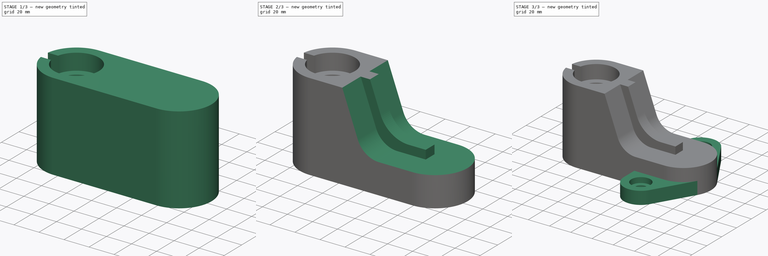
[diagram: build sequence overview — one tinted view per stage of 3, left to right]
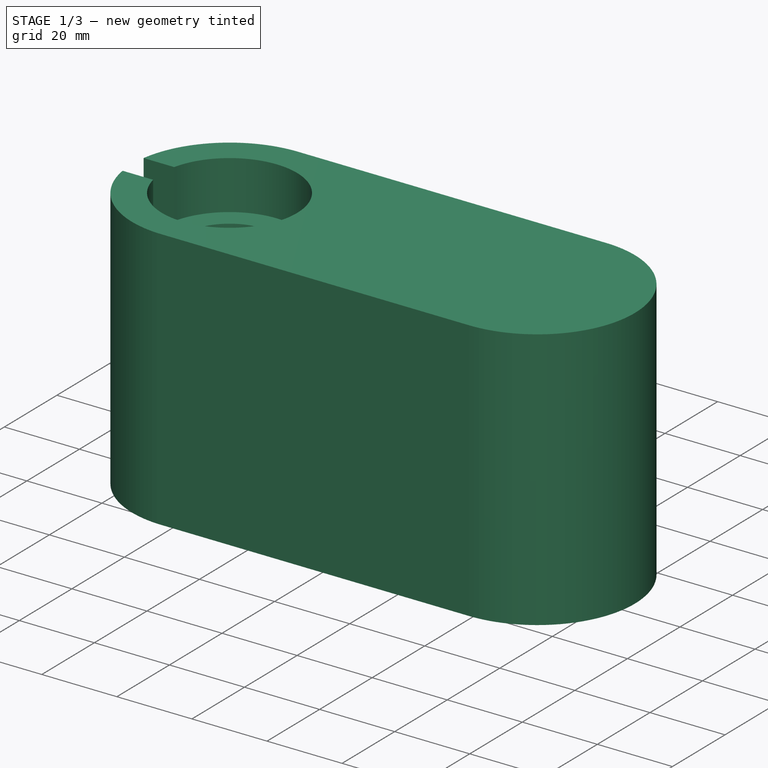
[diagram: stage 1 of 3 — iso view after this stage's code; geometry added in this stage tinted green]
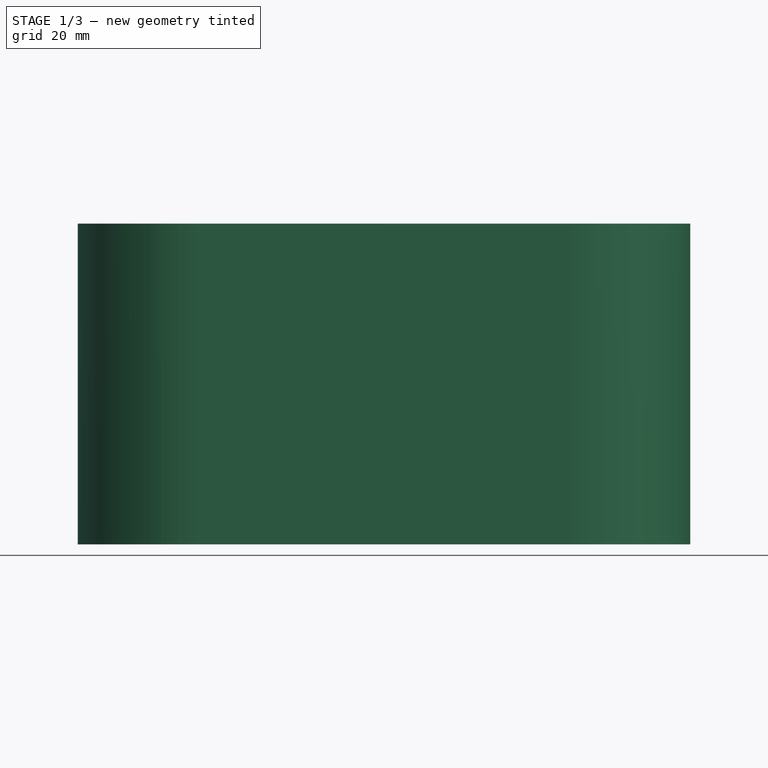
[diagram: stage 1 of 3 — front view after this stage's code; geometry added in this stage tinted green]
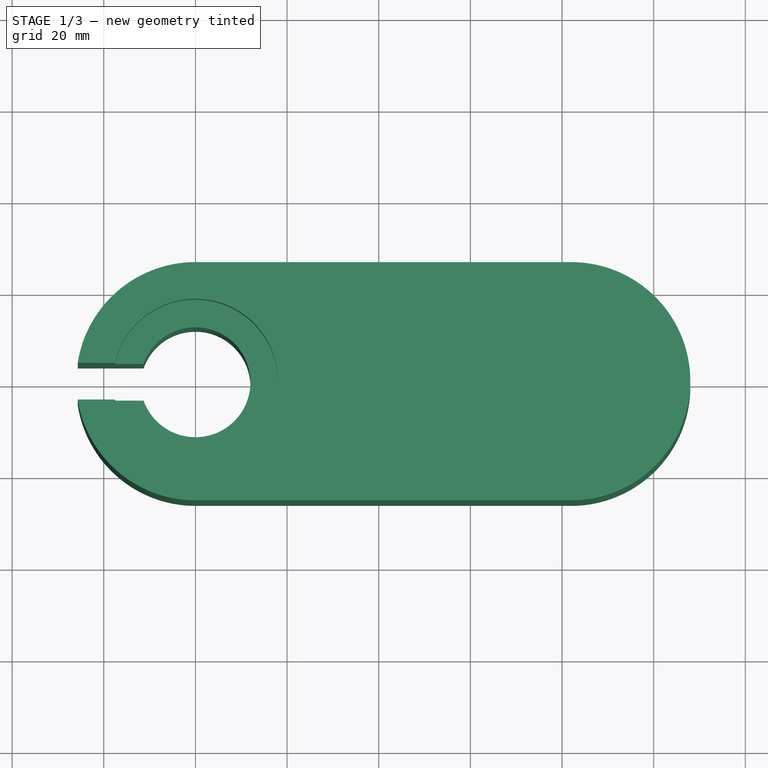
[diagram: stage 1 of 3 — top view after this stage's code; geometry added in this stage tinted green]
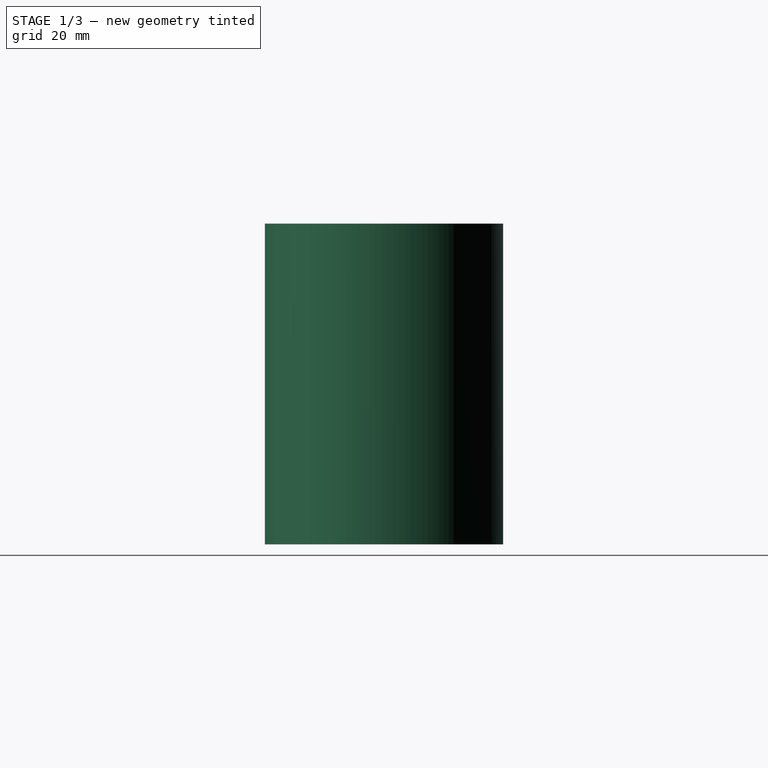
[diagram: stage 1 of 3 — right view after this stage's code; geometry added in this stage tinted green]
FCSTD DOCUMENT  (FreeCAD 1.1R42340 (Git))
Label: 25-VT-08-L_STUB
License: Creative Commons Attribution-NonCommercial-ShareAlike 4.0
LicenseURL: https://creativecommons.org/licenses/by-nc-sa/4.0/
objects: Sketcher::SketchObject×5, PartDesign::Pad×3, PartDesign::Pocket×2, PartDesign::Hole×2, App::Point×1, PartDesign::Mirrored×1, PartDesign::Body×1, App::TextDocument×1
note: 34 computed .brp shape members not serialized (recipe doc carries the construction recipe); baked Part::Feature solids carry a one-line shape summary decoded from their .brp

FEATURE [App::Point] Origin001
  Role = Origin
FEATURE [Sketcher::SketchObject] Sketch
  ArcFitTolerance = 1e-06
  AttachmentSupport = -> [Origin]
  ExternalTypes = [0]
  FullyConstrained = true
  MakeInternals = false
  MapMode = 5
  sketch-geometry (4):
    g0: ArcOfCircle CenterX=82 CenterY=9e-16 CenterZ=0 NormalX=0 NormalY=0 NormalZ=1 AngleXU=0 Radius=26 StartAngle=4.71239 EndAngle=7.85398
    g1: ArcOfCircle CenterX=0 CenterY=0 CenterZ=0 NormalX=0 NormalY=0 NormalZ=1 AngleXU=0 Radius=26 StartAngle=1.5708 EndAngle=4.71239
    g2: LineSegment StartX=82 StartY=-26 StartZ=0 EndX=0 EndY=-26 EndZ=0
    g3: LineSegment StartX=82 StartY=26 StartZ=0 EndX=0 EndY=26 EndZ=0
  constraints (9):
    c: Tangent(g0,g2) = 1.5708
    c: Tangent(g0,g3) = -1.5708
    c: Tangent(g1,g2) = 1.5708
    c: Tangent(g1,g3) = -1.5708
    c: Equal(g0,g1)
    c: Horizontal(g3)
    c: Distance(g0,g1) = 82
    c: Radius(g0) = 26
    c: Coincident(g1,g-1)
FEATURE [PartDesign::Pad] Pad
  Direction = (0,0,1)
  Length = 70
  Length2 = 10
  Profile = -> Sketch
  ReferenceAxis = -> Sketch [N_Axis]
  Refine = true
  Suppressed = false
  Type = 0
FEATURE [Sketcher::SketchObject] Sketch001
  ArcFitTolerance = 1e-06
  AttachmentSupport = -> [Origin]
  ExternalGeometry = -> [Pad]
  ExternalTypes = [0]
  FullyConstrained = true
  MakeInternals = false
  MapMode = 5
  Placement = pos=(0,0,0) rot=(0.57735,0.57735,0.57735;2.0944rad)
  sketch-geometry (5):
    g0: LineSegment StartX=-4 StartY=0 StartZ=0 EndX=4 EndY=0 EndZ=0
    g1: LineSegment StartX=4 StartY=0 StartZ=0 EndX=4 EndY=70 EndZ=0
    g2: LineSegment StartX=4 StartY=70 StartZ=0 EndX=-4 EndY=70 EndZ=0
    g3: LineSegment StartX=-4 StartY=70 StartZ=0 EndX=-4 EndY=0 EndZ=0
    g4: GeomPoint [constr] X=0 Y=35 Z=0
  constraints (13):
    c: Coincident(g0,g1)
    c: Coincident(g1,g2)
    c: Coincident(g2,g3)
    c: Coincident(g3,g0)
    c: Horizontal(g0)
    c: Horizontal(g2)
    c: Vertical(g1)
    c: Vertical(g3)
    c: Symmetric(g2,g0,g4)
    c: Distance(g1,g3) = 8
    c: Distance(g0,g2) = 70
    c: PointOnObject(g4,g-2)
    c: PointOnObject(g1,g-3)
FEATURE [PartDesign::Pocket] Pocket
  BaseFeature = -> Pad
  Direction = (-1,0,0)
  Length = 5
  Length2 = 5
  Profile = -> Sketch001
  ReferenceAxis = -> Sketch001 [N_Axis]
  Refine = true
  Suppressed = false
  Type = 1
FEATURE [PartDesign::Hole] Hole
  BaseFeature = -> Pocket
  BaseProfileType = 7
  CustomThreadClearance = 0
  Depth = 322.407
  DepthType = 1
  Diameter = 24
  DrillForDepth = false
  DrillPoint = 1
  DrillPointAngle = 118
  HoleCutCountersinkAngle = 90
  HoleCutCustomValues = false
  HoleCutDepth = 13
  HoleCutDiameter = 36
  HoleCutType = 1
  ModelThread = false
  Profile = -> Pocket [Edge16]
  Refine = true
  Suppressed = false
  Tapered = false
  TaperedAngle = 90
  ThreadClass = 0
  ThreadDepth = 322.407
  ThreadDepthType = 0
  ThreadDiameter = 24
  ThreadDirection = 0
  ThreadFit = 0
  ThreadSize = 0
  ThreadType = 0
  Threaded = false
  UseCustomThreadClearance = false
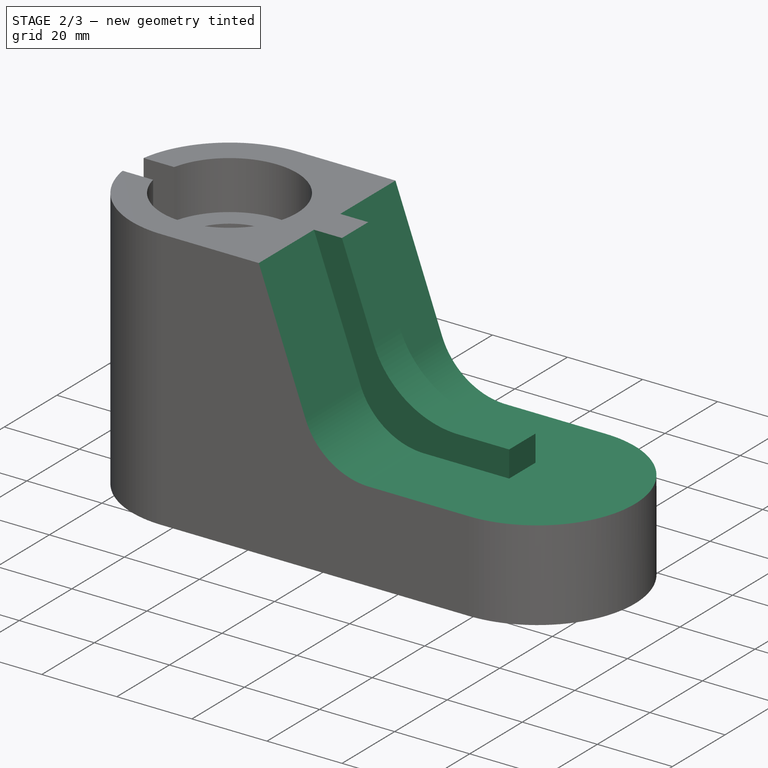
[diagram: stage 2 of 3 — iso view after this stage's code; geometry added in this stage tinted green]
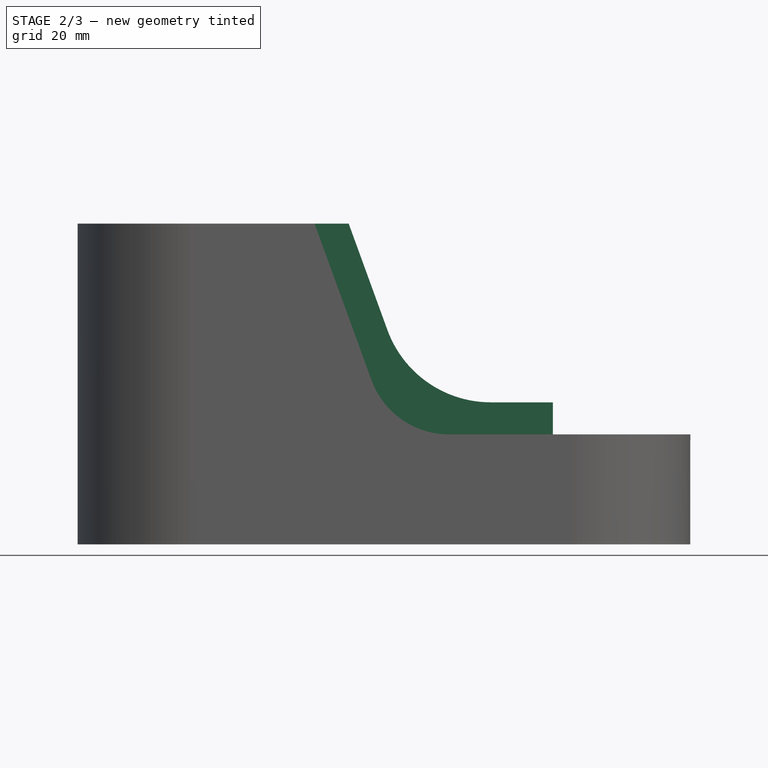
[diagram: stage 2 of 3 — front view after this stage's code; geometry added in this stage tinted green]
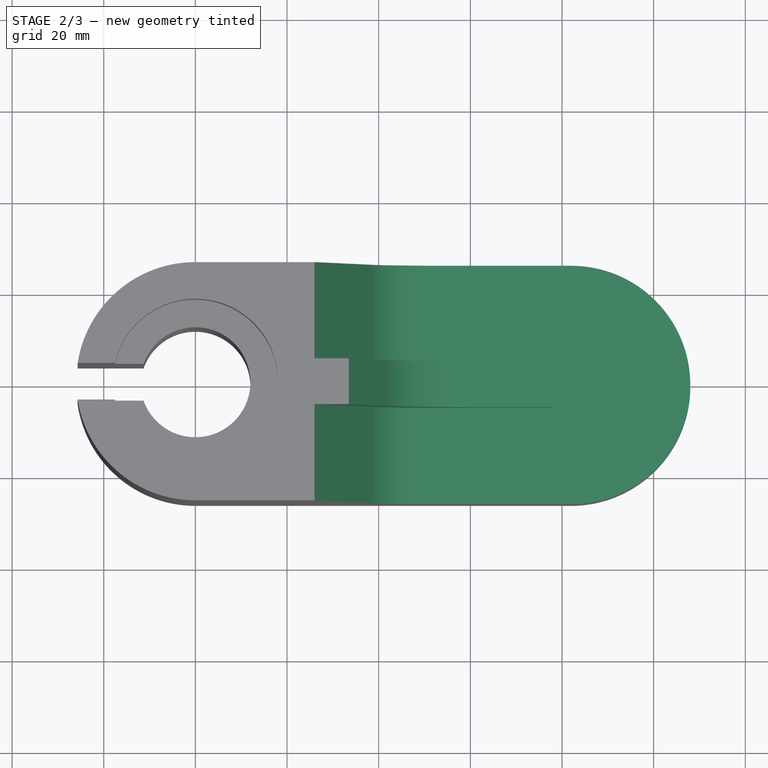
[diagram: stage 2 of 3 — top view after this stage's code; geometry added in this stage tinted green]
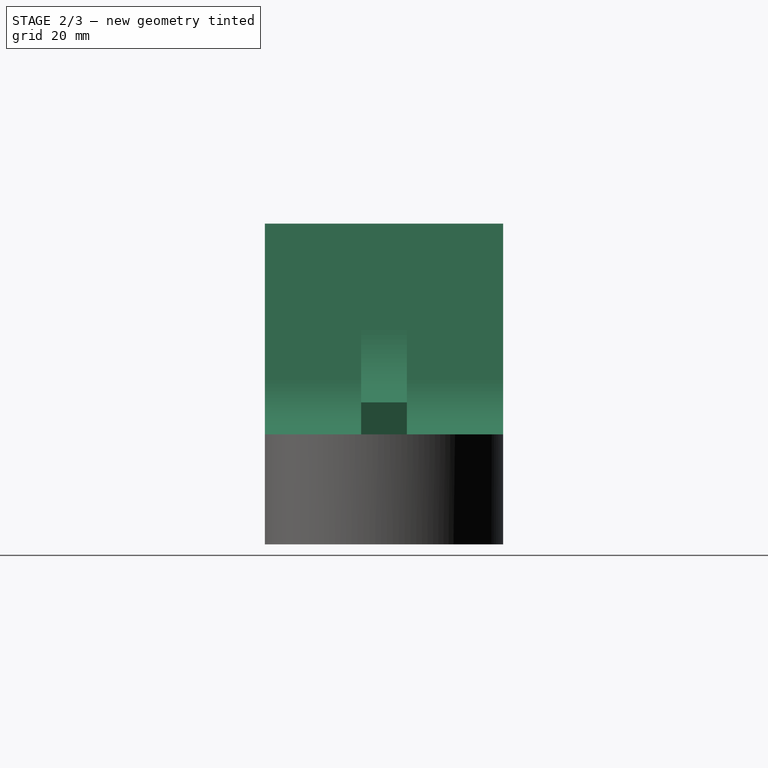
[diagram: stage 2 of 3 — right view after this stage's code; geometry added in this stage tinted green]
FEATURE [Sketcher::SketchObject] Sketch002
  ArcFitTolerance = 1e-06
  AttachmentSupport = -> [Origin]
  ExternalGeometry = -> [Hole]
  ExternalTypes = [0]
  FullyConstrained = true
  MakeInternals = false
  MapMode = 5
  Placement = pos=(0,0,0) rot=(1,0,0;1.5708rad)
  sketch-geometry (5):
    g0: LineSegment StartX=26 StartY=70 StartZ=0 EndX=38.4319 EndY=35.8436 EndZ=0
    g1: ArcOfCircle CenterX=55.3464 CenterY=42 CenterZ=0 NormalX=0 NormalY=0 NormalZ=1 AngleXU=0 Radius=18 StartAngle=3.49066 EndAngle=4.71239
    g2: LineSegment StartX=55.3464 StartY=24 StartZ=0 EndX=108 EndY=24 EndZ=0
    g3: LineSegment StartX=108 StartY=24 StartZ=0 EndX=108 EndY=70 EndZ=0
    g4: LineSegment StartX=108 StartY=70 StartZ=0 EndX=26 EndY=70 EndZ=0
  constraints (13):
    c: Tangent(g0,g1) = -1.5708
    c: Tangent(g1,g2) = -1.5708
    c: Coincident(g2,g3)
    c: Vertical(g3)
    c: Coincident(g3,g4)
    c: Coincident(g4,g0)
    c: Horizontal(g4)
    c: Coincident(g3,g-3)
    c: Distance(g0,g-2) = 26
    c: Angle(g-2,g0) = 0.349066
    c: Distance(g2,g-1) = 24
    c: Horizontal(g2)
    c: Radius(g1) = 18
FEATURE [PartDesign::Pocket] Pocket001
  BaseFeature = -> Hole
  Direction = (0,1,0)
  Length = 5
  Length2 = 5
  Midplane = true
  Profile = -> Sketch002
  ReferenceAxis = -> Sketch002 [N_Axis]
  Refine = true
  Suppressed = false
  Type = 1
FEATURE [Sketcher::SketchObject] Sketch003
  ArcFitTolerance = 1e-06
  AttachmentSupport = -> [Origin]
  ExternalGeometry = -> [Pocket001]
  ExternalTypes = [0,0,0,0]
  FullyConstrained = true
  MakeInternals = false
  MapMode = 5
  Placement = pos=(0,0,0) rot=(1,0,0;1.5708rad)
  sketch-geometry (8):
    g0: LineSegment StartX=26 StartY=70 StartZ=0 EndX=33.4492 EndY=70 EndZ=0
    g1: LineSegment StartX=33.4492 StartY=70 StartZ=0 EndX=41.8964 EndY=46.7915 EndZ=0
    g2: ArcOfCircle CenterX=64.4491 CenterY=55 CenterZ=0 NormalX=0 NormalY=0 NormalZ=1 AngleXU=0 Radius=24 StartAngle=3.49066 EndAngle=4.71239
    g3: LineSegment StartX=64.4491 StartY=31 StartZ=0 EndX=78 EndY=31 EndZ=0
    g4: LineSegment StartX=78 StartY=31 StartZ=0 EndX=78 EndY=24 EndZ=0
    g5: LineSegment StartX=78 StartY=24 StartZ=0 EndX=55.3464 EndY=24 EndZ=0
    g6: ArcOfCircle CenterX=55.3464 CenterY=42 CenterZ=0 NormalX=0 NormalY=0 NormalZ=1 AngleXU=0 Radius=18 StartAngle=3.49066 EndAngle=4.71239
    g7: LineSegment StartX=38.4319 StartY=35.8436 StartZ=0 EndX=26 EndY=70 EndZ=0
  constraints (19):
    c: Coincident(g-3,g0)
    c: Horizontal(g0)
    c: Coincident(g0,g1)
    c: Tangent(g1,g2) = -1.5708
    c: Horizontal(g3)
    c: Coincident(g3,g4)
    c: Vertical(g4)
    c: Coincident(g4,g5)
    c: Coincident(g5,g-4)
    c: Tangent(g5,g6) = 1.5708
    c: Coincident(g6,g-4)
    c: Tangent(g6,g7) = 1.5708
    c: Coincident(g7,g0)
    c: Radius(g2) = 24
    c: Tangent(g2,g3) = -1.5708
    c: DistanceX(g3,g-5) = 30
    c: Distance(g1,g7) = 7
    c: Parallel(g1,g7)
    c: Distance(g4,g4) = 7
FEATURE [PartDesign::Pad] Pad001
  BaseFeature = -> Pocket001
  Direction = (0,-1,0)
  Length = 10
  Length2 = 10
  Midplane = true
  Profile = -> Sketch003
  ReferenceAxis = -> Sketch003 [N_Axis]
  Refine = true
  Suppressed = false
  Type = 0
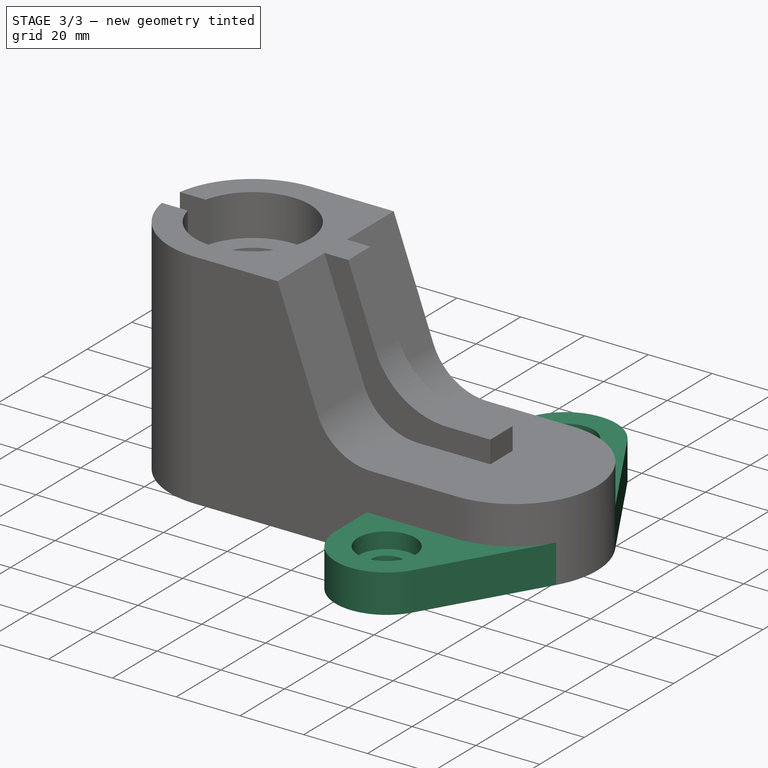
[diagram: stage 3 of 3 — iso view after this stage's code; geometry added in this stage tinted green]
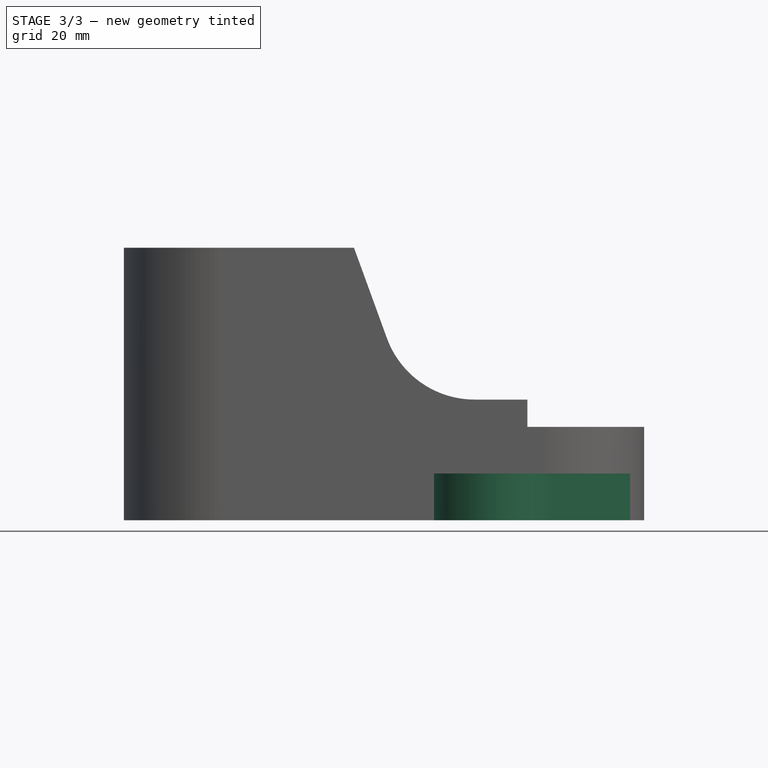
[diagram: stage 3 of 3 — front view after this stage's code; geometry added in this stage tinted green]
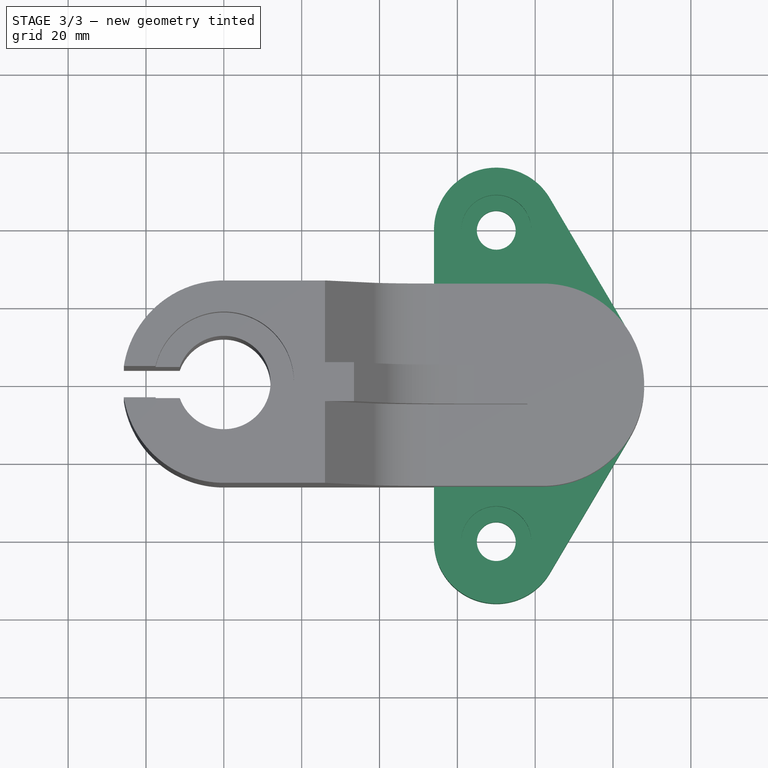
[diagram: stage 3 of 3 — top view after this stage's code; geometry added in this stage tinted green]
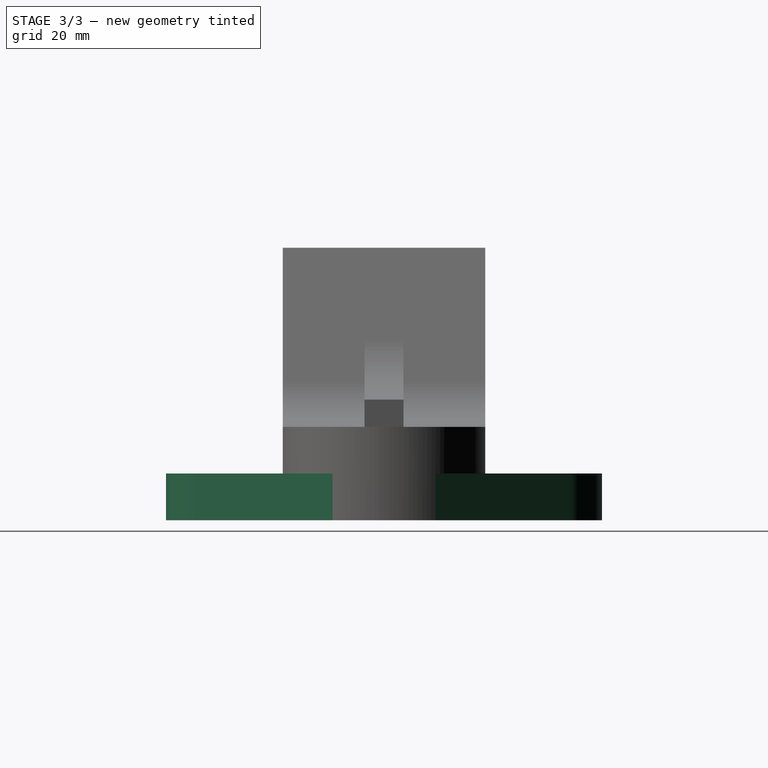
[diagram: stage 3 of 3 — right view after this stage's code; geometry added in this stage tinted green]
FEATURE [Sketcher::SketchObject] Sketch004
  ArcFitTolerance = 1e-06
  AttachmentSupport = -> [Origin]
  ExternalGeometry = -> [Pad001]
  ExternalTypes = [0]
  FullyConstrained = true
  MakeInternals = false
  MapMode = 5
  sketch-geometry (4):
    g0: LineSegment StartX=54 StartY=0 StartZ=0 EndX=54 EndY=-40 EndZ=0
    g1: ArcOfCircle CenterX=70 CenterY=-40 CenterZ=0 NormalX=0 NormalY=0 NormalZ=1 AngleXU=0 Radius=16 StartAngle=3.14159 EndAngle=5.74992
    g2: LineSegment StartX=83.7784 StartY=-48.1335 StartZ=0 EndX=104.39 EndY=-13.217 EndZ=0
    g3: LineSegment StartX=104.39 StartY=-13.217 StartZ=0 EndX=54 EndY=0 EndZ=0
  constraints (10):
    c: PointOnObject(g0,g-1)
    c: Vertical(g0)
    c: Tangent(g0,g1) = -1.5708
    c: Tangent(g1,g2) = -1.5708
    c: Coincident(g2,g3)
    c: Coincident(g3,g0)
    c: Tangent(g2,g-3) = -1.5708
    c: Distance(g1,g-1) = 40
    c: Radius(g1) = 16
    c: Distance(g1,g-2) = 70
FEATURE [PartDesign::Pad] Pad002
  BaseFeature = -> Pad001
  Direction = (0,0,1)
  Length = 12
  Length2 = 10
  Profile = -> Sketch004
  ReferenceAxis = -> Sketch004 [N_Axis]
  Refine = true
  Suppressed = false
  Type = 0
FEATURE [PartDesign::Hole] Hole001
  BaseFeature = -> Pad002
  BaseProfileType = 7
  CustomThreadClearance = 0
  Depth = 346.927
  DepthType = 1
  Diameter = 10
  DrillForDepth = false
  DrillPoint = 1
  DrillPointAngle = 118
  HoleCutCountersinkAngle = 90
  HoleCutCustomValues = false
  HoleCutDepth = 5
  HoleCutDiameter = 18
  HoleCutType = 1
  ModelThread = false
  Profile = -> Pad002 [Edge7]
  Refine = true
  Suppressed = false
  Tapered = false
  TaperedAngle = 90
  ThreadClass = 0
  ThreadDepth = 346.927
  ThreadDepthType = 0
  ThreadDiameter = 10
  ThreadDirection = 0
  ThreadFit = 0
  ThreadSize = 0
  ThreadType = 0
  Threaded = false
  UseCustomThreadClearance = false
FEATURE [PartDesign::Mirrored] Mirrored
  BaseFeature = -> Hole001
  MirrorPlane = -> XZ_Plane
  Originals = -> [Hole001]
  Refine = true
  Suppressed = false
  TransformMode = 1
FEATURE [PartDesign::Body] Body
  AllowCompound = true
  Group = -> [Sketch,Pad,Sketch001,Pocket,Hole,Sketch002,Pocket001,Sketch003,Pad001,Sketch004,Pad002,Hole001,Mirrored]
  Origin = -> Origin
  Tip = -> Mirrored
FEATURE [App::TextDocument] Text_document  label="Text document"
  Text = ABS 1020 kg/m3\n\n270,6 g\n\nOK!
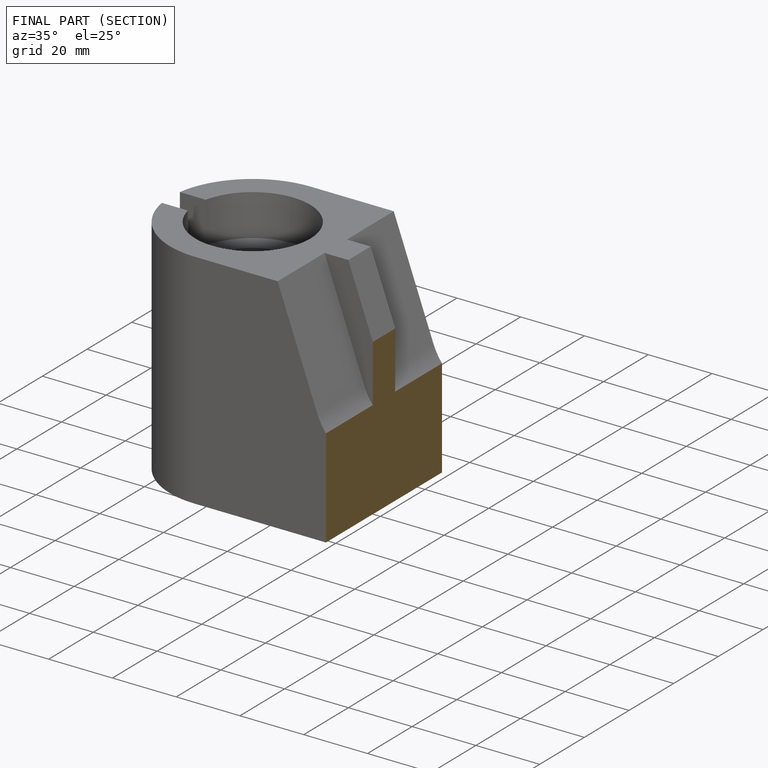
[diagram: finished part — half-section view (interior)]
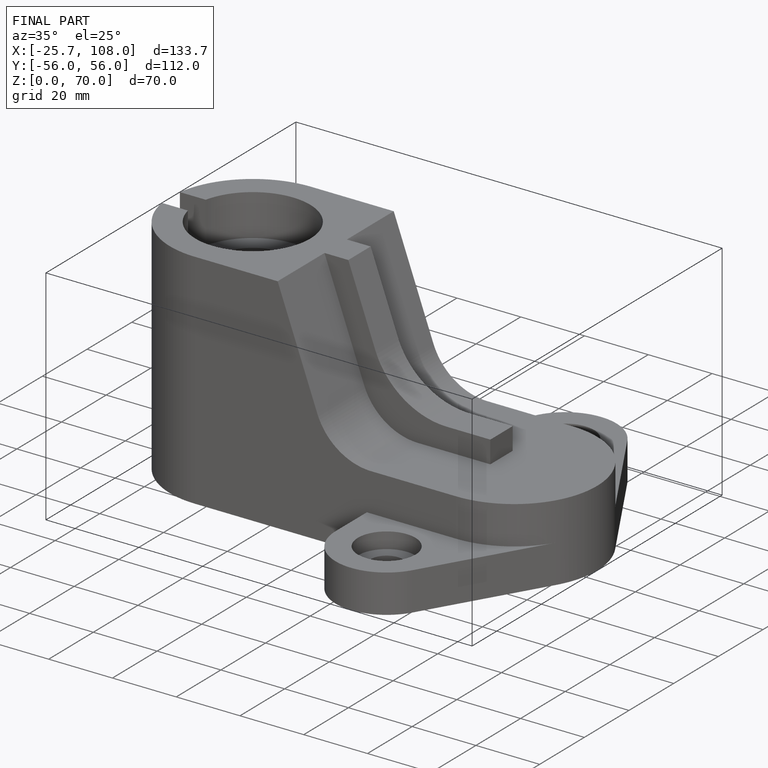
[diagram: finished part — iso view with bounding-box wireframe]
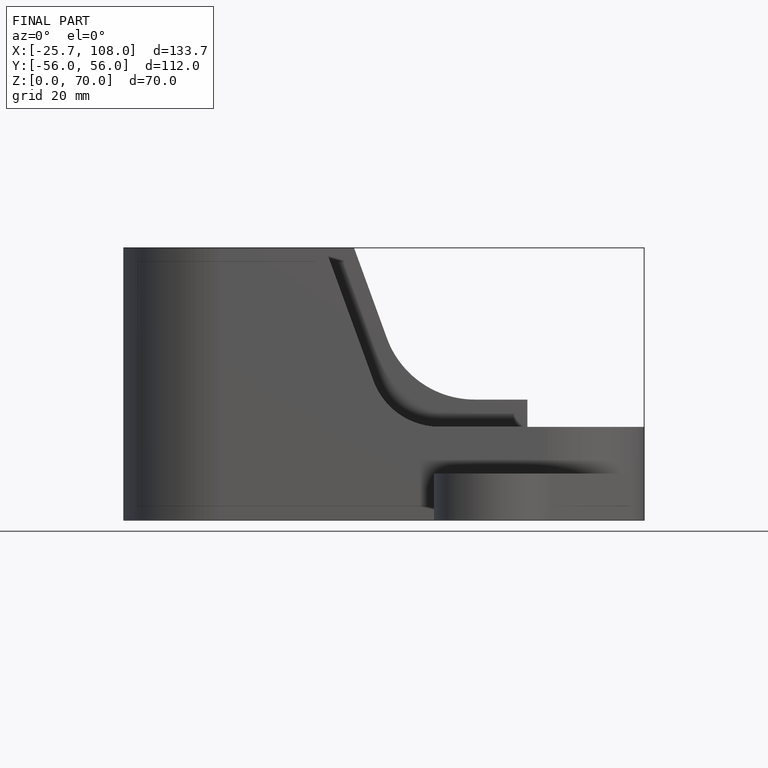
[diagram: finished part — front view with bounding-box wireframe]
